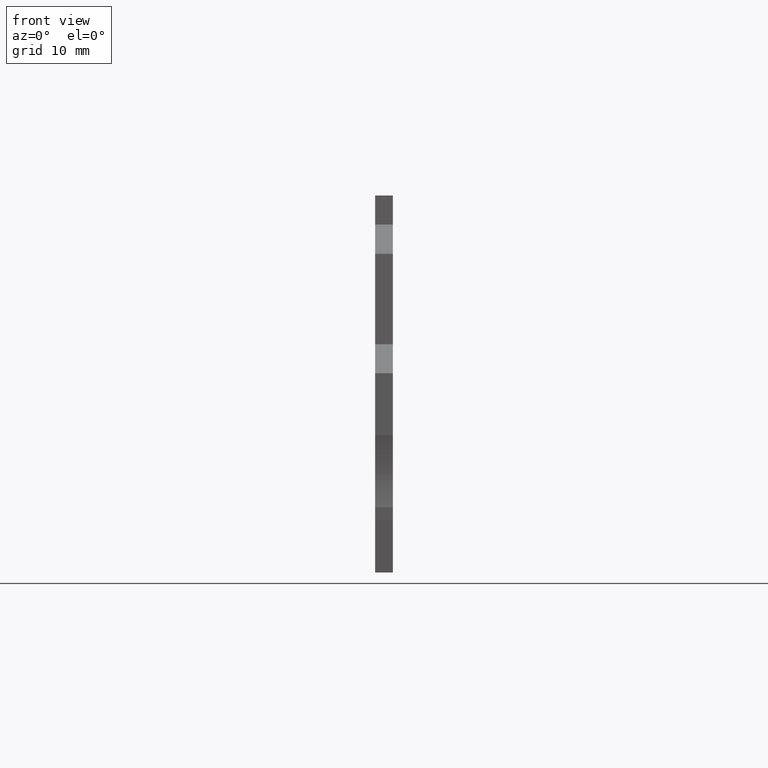
[diagram: clean part render]
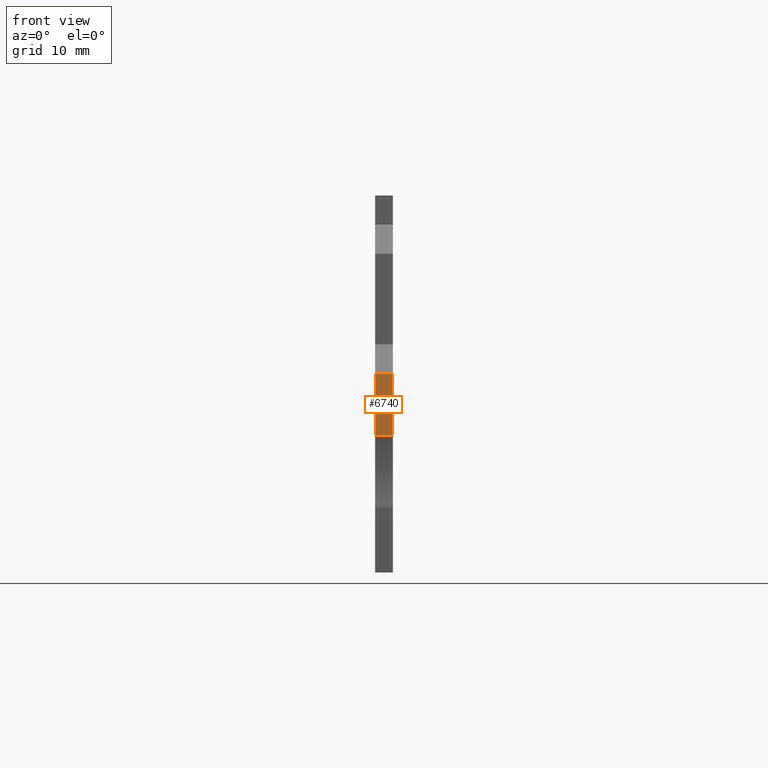
[diagram: same view with one face highlighted and labeled with its STEP entity id]
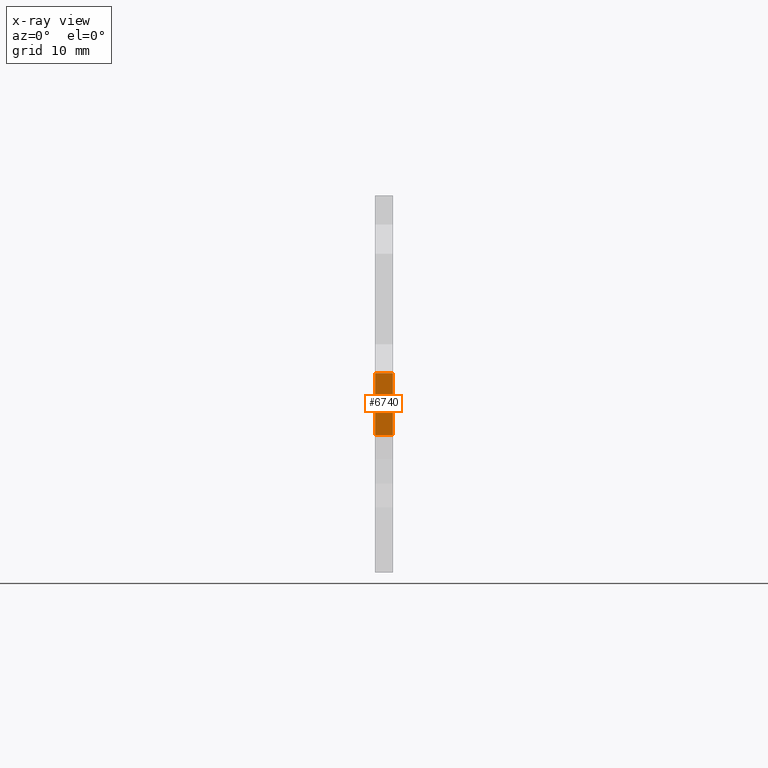
[diagram: x-ray of the same camera — body ghosted, the highlighted face saturated]
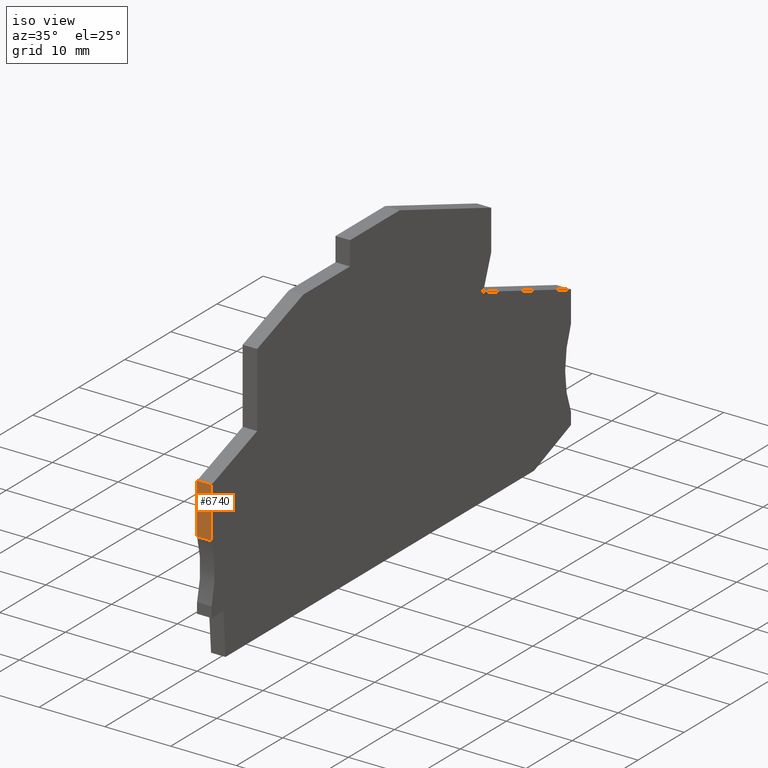
[diagram: same view with one face highlighted and labeled with its STEP entity id]
A machine part, front view. The second image highlights one B-rep face of the part: STEP entity #6740.
The next image is the same camera in x-ray: the body ghosted, the highlighted face saturated — about 0% of this face is hidden behind the body in this view.
A second angle (iso view) of the same face is appended — the face is thin or edge-on in the first view.
In plain terms, the highlighted planar face has unit normal (0, -1, 0).
Its self-contained STEP definition (entity closure, byte-faithful):
#1490=CARTESIAN_POINT('',(-54.1,13.3795999573244,-6.3948846218409E-14));
#1500=VERTEX_POINT('',#1490);
#1530=CARTESIAN_POINT('',(-54.1,22.375712,-6.3948846218409E-14));
#1540=DIRECTION('',(0.,1.,0.));
#1550=VECTOR('',#1540,1.);
#1560=LINE('',#1530,#1550);
#1570=CARTESIAN_POINT('',(-54.1,5.68452424726971,-6.3948846218409E-14));
#1580=VERTEX_POINT('',#1570);
#1590=EDGE_CURVE('',#1580,#1500,#1560,.T.);
#1900=CARTESIAN_POINT('',(-54.1,5.68452424726971,2.19999999999994));
#1910=VERTEX_POINT('',#1900);
#1940=CARTESIAN_POINT('',(-54.1,22.375712,2.19999999999994));
#1950=DIRECTION('',(0.,-1.,0.));
#1960=VECTOR('',#1950,1.);
#1970=LINE('',#1940,#1960);
#1980=CARTESIAN_POINT('',(-54.1,13.3795999573244,2.19999999999994));
#1990=VERTEX_POINT('',#1980);
#2000=EDGE_CURVE('',#1990,#1910,#1970,.T.);
#6230=CARTESIAN_POINT('',(-54.1,13.3795999573244,-6.3948846218409E-14));
#6240=DIRECTION('',(0.,0.,-1.));
#6250=VECTOR('',#6240,1.);
#6260=LINE('',#6230,#6250);
#6270=EDGE_CURVE('',#1990,#1500,#6260,.T.);
#6580=CARTESIAN_POINT('',(-54.1,5.9817784530609,-6.3948846218409E-14));
#6590=DIRECTION('',(-1.,0.,0.));
#6600=DIRECTION('',(0.,-1.,0.));
#6610=AXIS2_PLACEMENT_3D('',#6580,#6590,#6600);
#6620=PLANE('',#6610);
#6630=ORIENTED_EDGE('',*,*,#1590,.F.);
#6640=ORIENTED_EDGE('',*,*,#6270,.T.);
#6650=ORIENTED_EDGE('',*,*,#2000,.F.);
#6660=CARTESIAN_POINT('',(-54.1,5.68452424726971,-6.3948846218409E-14));
#6670=DIRECTION('',(0.,0.,-1.));
#6680=VECTOR('',#6670,1.);
#6690=LINE('',#6660,#6680);
#6700=EDGE_CURVE('',#1910,#1580,#6690,.T.);
#6710=ORIENTED_EDGE('',*,*,#6700,.F.);
#6720=EDGE_LOOP('',(#6710,#6650,#6640,#6630));
#6730=FACE_OUTER_BOUND('',#6720,.T.);
#6740=ADVANCED_FACE('',(#6730),#6620,.T.);